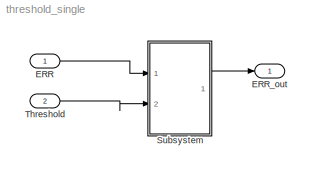
MODEL threshold_single
KIND model
CONFIG AbsTol = auto
CONFIG FixedStep = auto
CONFIG MaxStep = auto
CONFIG MinStep = auto
CONFIG RelTol = 1e-3
CONFIG Solver = ode45
CONFIG SolverMode = Auto
CONFIG StartTime = 0.0
CONFIG StopTime = 10.0
BLOCK [Inport] ERR
BLOCK [Outport] ERR_out
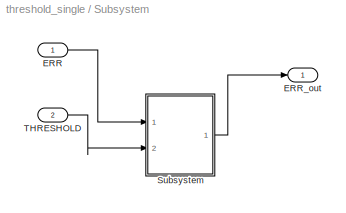
BLOCK [SubSystem] Subsystem
  Ports = [2, 1]
  TreatAsAtomicUnit = off
BLOCK [Inport] Subsystem/ERR
BLOCK [Outport] Subsystem/ERR_out
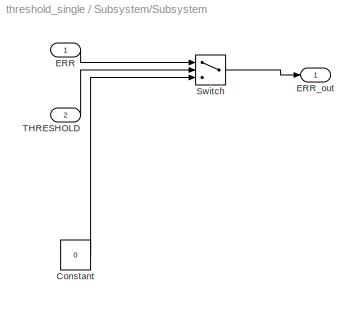
BLOCK [SubSystem] Subsystem/Subsystem
  MaskEnableString = on
  MaskIconFrame = on
  MaskIconOpaque = on
  MaskIconRotate = none
  MaskIconUnits = autoscale
  MaskPromptString = Threshold
  MaskStyleString = edit
  MaskToolTipString = on
  MaskTunableValueString = on
  MaskValueString = 400e-6
  MaskVariables = T=@1;
  MaskVisibilityString = on
  Ports = [2, 1]
  TreatAsAtomicUnit = off
BLOCK [Constant] Subsystem/Subsystem/Constant
  Value = 0
BLOCK [Inport] Subsystem/Subsystem/ERR
BLOCK [Outport] Subsystem/Subsystem/ERR_out
BLOCK [Switch] Subsystem/Subsystem/Switch
  InputSameDT = off
  Threshold = T
BLOCK [Inport] Subsystem/Subsystem/THRESHOLD
  Port = 2
BLOCK [Inport] Subsystem/THRESHOLD
  Port = 2
BLOCK [Inport] Threshold
  Port = 2
LINE ERR:1 -> Subsystem:1
LINE Subsystem/ERR:1 -> Subsystem/Subsystem:1
LINE Subsystem/Subsystem/Constant:1 -> Subsystem/Subsystem/Switch:3
LINE Subsystem/Subsystem/ERR:1 -> Subsystem/Subsystem/Switch:1
LINE Subsystem/Subsystem/Switch:1 -> Subsystem/Subsystem/ERR_out:1
LINE Subsystem/Subsystem/THRESHOLD:1 -> Subsystem/Subsystem/Switch:2
LINE Subsystem/Subsystem:1 -> Subsystem/ERR_out:1
LINE Subsystem/THRESHOLD:1 -> Subsystem/Subsystem:2
LINE Subsystem:1 -> ERR_out:1
LINE Threshold:1 -> Subsystem:2
